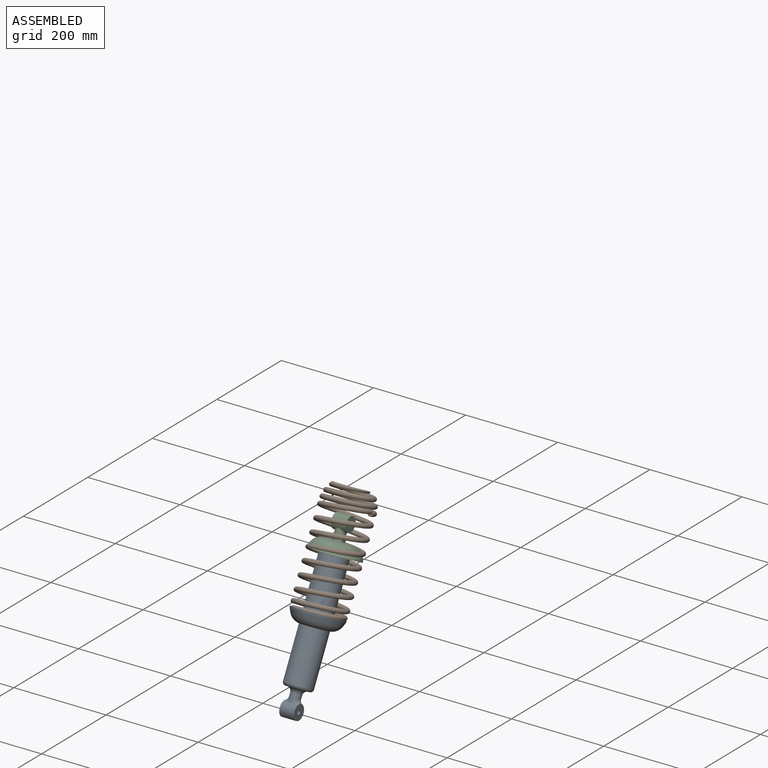
[diagram: assembled view]
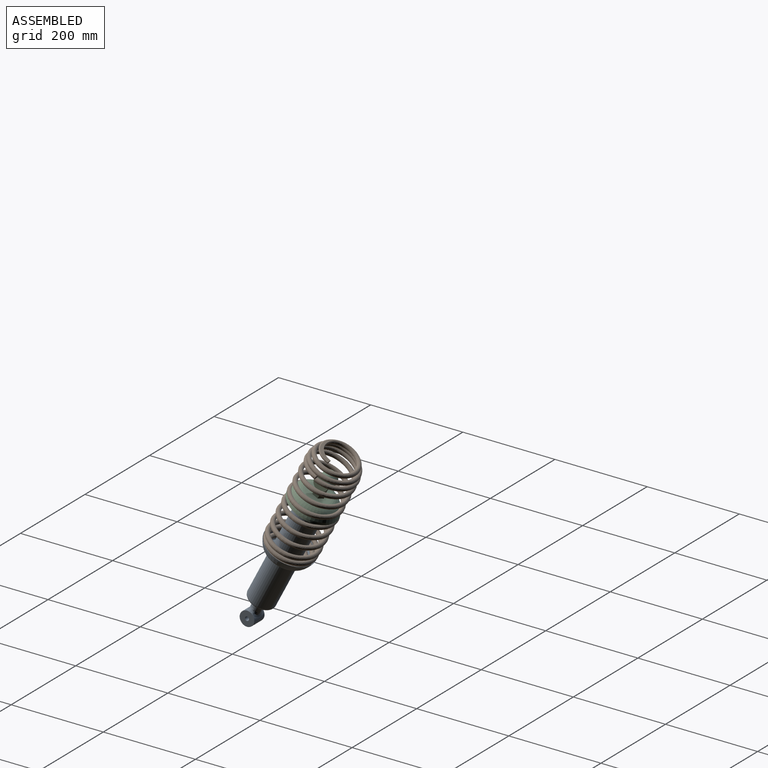
[diagram: assembled view, second angle]
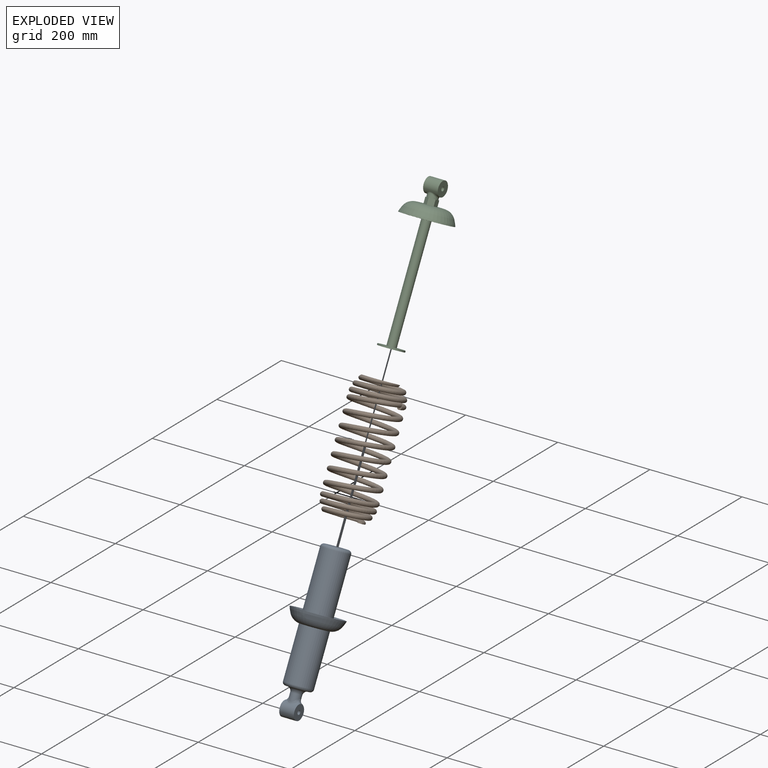
[diagram: exploded view]
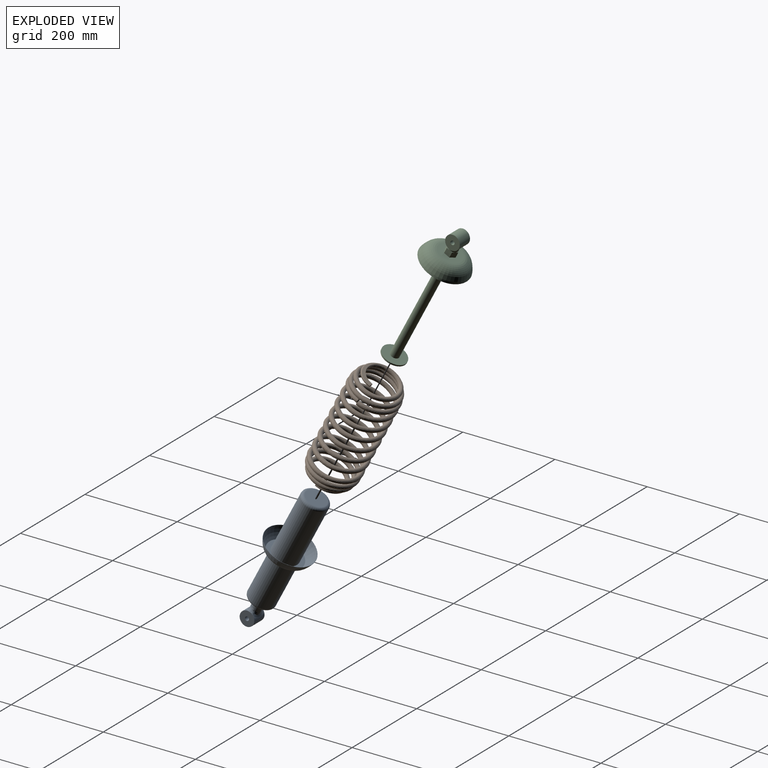
[diagram: exploded view, second angle]
ASSEMBLY  parts=3 mates=2
PART A: 29 faces, bbox 109.7x180.5x295.7 mm
  f0: cylinder r=28.57mm len=121.42mm, axis (0,-0.46,-0.89), area 19235.2mm2, adj f10,f23
  f1: cylinder r=4.45mm len=31.75mm, axis (-1,0,0), area 812.3mm2, adj f3,f4,f6,f7,f8
  f2: cylinder r=15.88mm len=31.75mm, axis (-1,0,0), area 2360.1mm2, adj f3,f4,f13,f14
  f3: plane 32.29x32.29mm, normal (1,0,0), area 729.7mm2, adj f1,f2,f12
  f4: plane 32.29x32.29mm, normal (-1,0,0), area 729.7mm2, adj f1,f2,f15
  f5: cylinder r=11.11mm len=27.19mm, axis (0,-0.46,-0.89), area 768.6mm2, adj f11,f12,f13,f14,f15
  f6: cylinder r=11.11mm len=2.93mm, axis (0,-0.46,-0.89), area 0mm2, adj f1,f8
  f7: cylinder r=11.11mm len=2.93mm, axis (0,-0.46,-0.89), area 0mm2, adj f1,f8
  f8: plane 22.23x2.93mm, normal (0,-0.46,-0.89), area 73.2mm2, adj f1,f6,f7
  f9: plane 44.45x39.43mm, normal (0,-0.46,-0.89), area 294.8mm2, adj f10,f11
  f10: torus R=22.23mm, axis (0,0.46,0.89), area 1646.2mm2, adj f0,f9
  f11: torus R=20mm, axis (0,0.46,0.89), area 1258.5mm2, adj f5,f9
  f12: bspline ~17.56x14.22mm, area 141.9mm2, adj f3,f5,f13,f14
  f13: bspline ~31.75x11.01mm, area 227mm2, adj f2,f5,f12,f15
  f14: bspline ~34x15.61mm, area 227mm2, adj f2,f5,f12,f15
  f15: bspline ~17.11x14.73mm, area 141.9mm2, adj f4,f5,f13,f14
  f16: torus R=7.8mm, axis (0,0.46,0.89), area 7797.3mm2, adj f17,f22
  f17: cone r=52.28mm half-angle=74.5deg, axis (0,-0.46,-0.89), area 167.6mm2, adj f16,f18
  f18: revolved ~105.53x94.9mm, area 4521.9mm2, adj f17,f23
  f19: plane 44.45x39.43mm, normal (0,0.46,0.89), area 1551.8mm2, adj f20
  f20: torus R=22.23mm, axis (0,0.46,0.89), area 1646.2mm2, adj f19,f21
  f21: cylinder r=28.57mm len=149.66mm, axis (0,-0.46,-0.89), area 24951.2mm2, adj f20,f22
  f22: plane 76.47x67.83mm, normal (0,0.46,0.89), area 2027.2mm2, adj f16,f21
  f23: torus R=26.29mm, axis (0,-0.46,-0.89), area 5693.1mm2, adj f0,f18
  f24: plane 44.45x39.43mm, normal (0,-0.46,-0.89), area 1551.8mm2, adj f27
  f25: cylinder r=26.04mm len=245.16mm, axis (0,-0.46,-0.89), area 40778.1mm2, adj f27,f28
  f26: plane 44.45x39.43mm, normal (0,0.46,0.89), area 1551.8mm2, adj f28
  f27: torus R=22.23mm, axis (0,0.46,0.89), area 926.9mm2, adj f24,f25
  f28: torus R=22.23mm, axis (0,0.46,0.89), area 926.9mm2, adj f25,f26
PART B: 10 faces, bbox 109.1x193.8x266.4 mm
  f0: bspline ~203.61x162.26mm, area 64641.1mm2, adj f1,f2,f6
  f1: bspline ~12.52x9.53mm, area 86.6mm2, adj f0,f2
  f2: bspline ~107.39x96.27mm, area 23255.8mm2, adj f0,f1,f3,f4,f5
  f3: plane 9.53x4.22mm, normal (0,0.89,-0.46), area 35.6mm2, adj f2,f4
  f4: plane 64.78x33.92mm, normal (0,0.46,0.89), area 523.2mm2, adj f2,f3,f5
  f5: torus R=7.8mm, axis (0,-0.46,-0.89), area 834.9mm2, adj f2,f4
  f6: bspline ~107.39x96.27mm, area 23295.5mm2, adj f0,f7,f8,f9
  f7: plane 11.2x5.9mm, normal (0,-0.89,0.46), area 35.6mm2, adj f6,f8
  f8: plane 64.78x33.91mm, normal (0,-0.46,-0.89), area 523mm2, adj f6,f7,f9
  f9: torus R=7.8mm, axis (0,0.46,0.89), area 834.9mm2, adj f6,f8
PART C: 28 faces, bbox 109.3x183.6x292.7 mm
  f0: cylinder r=11.11mm len=23.87mm, axis (0,-0.46,-0.89), area 391mm2, adj f1,f2,f3,f4,f5,f12,f17
  f1: plane 8.54x5.56mm, normal (0,0.46,0.89), area 6.6mm2, adj f0,f6,f7
  f2: plane 8.54x5.56mm, normal (0,0.46,0.89), area 6.6mm2, adj f0,f7,f8
  f3: plane 11.11x2.85mm, normal (0,0.46,0.89), area 6.6mm2, adj f0,f8,f9
  f4: plane 8.54x5.56mm, normal (0,0.46,0.89), area 6.6mm2, adj f0,f9,f10
  f5: plane 8.54x5.56mm, normal (0,0.46,0.89), area 6.6mm2, adj f0,f10,f11
  f6: plane 14.23x11.56mm, normal (0.5,-0.77,0.4), area 163mm2, adj f1,f7,f11,f12,f18
  f7: plane 17.25x17.19mm, normal (1,0,0), area 163mm2, adj f1,f2,f6,f8,f18
  f8: plane 14.23x11.56mm, normal (0.5,0.77,-0.4), area 163mm2, adj f2,f3,f7,f9,f18
  f9: plane 14.23x11.56mm, normal (-0.5,0.77,-0.4), area 163mm2, adj f3,f4,f8,f10,f18
  f10: plane 17.25x17.19mm, normal (-1,0,0), area 163mm2, adj f4,f5,f9,f11,f18
  f11: plane 14.23x11.56mm, normal (-0.5,-0.77,0.4), area 163mm2, adj f5,f6,f10,f12,f18
  f12: plane 11.11x2.85mm, normal (0,0.46,0.89), area 6.6mm2, adj f0,f6,f11
  f13: cylinder r=15.88mm len=31.75mm, axis (-1,0,0), area 2583.2mm2, adj f15,f16,f17
  f14: cylinder r=4.45mm len=31.75mm, axis (-1,0,0), area 886.7mm2, adj f15,f16
  f15: plane 31.75x31.75mm, normal (1,0,0), area 729.7mm2, adj f13,f14
  f16: plane 31.75x31.75mm, normal (-1,0,0), area 729.7mm2, adj f13,f14
  f17: bspline ~28.61x21.39mm, area 285.4mm2, adj f0,f13
  f18: plane 52.69x46.74mm, normal (0,0.46,0.89), area 1752.8mm2, adj f6,f7,f8,f9,f10,f11,f27
  f19: torus R=7.8mm, axis (0,-0.46,-0.89), area 7797.3mm2, adj f20,f26
  f20: cone r=52.28mm half-angle=74.5deg, axis (0,0.46,0.89), area 167.6mm2, adj f19,f21
  f21: revolved ~105.53x94.9mm, area 4459.3mm2, adj f20,f27
  f22: plane 52.07x46.19mm, normal (0,-0.46,-0.89), area 2129.4mm2, adj f23
  f23: cylinder r=26.04mm len=52.07mm, axis (0,-0.46,-0.89), area 519.4mm2, adj f22,f24
  f24: plane 52.07x46.19mm, normal (0,0.46,0.89), area 1844.4mm2, adj f23,f25
  f25: cylinder r=9.53mm len=237.59mm, axis (0,-0.46,-0.89), area 15437mm2, adj f24,f26
  f26: plane 76.47x67.83mm, normal (0,-0.46,-0.89), area 4307.4mm2, adj f19,f25
  f27: torus R=26.35mm, axis (0,-0.46,-0.89), area 6123.6mm2, adj f18,f21
PLACE A t=(-318.15,688.66,-466.57)mm fixed
PLACE B t=(-318.15,688.66,-466.57)mm
PLACE C t=(-318.15,640.88,-558.37)mm
MATE slider C.f27 <-> A.f23  axis (0,-0.46,-0.89) through (87.73,-152.44,-319.36)mm
MATE fastened B.f9 <-> A.f23  axis (0,0.46,0.89) through (87.73,-163.47,-340.55)mm
